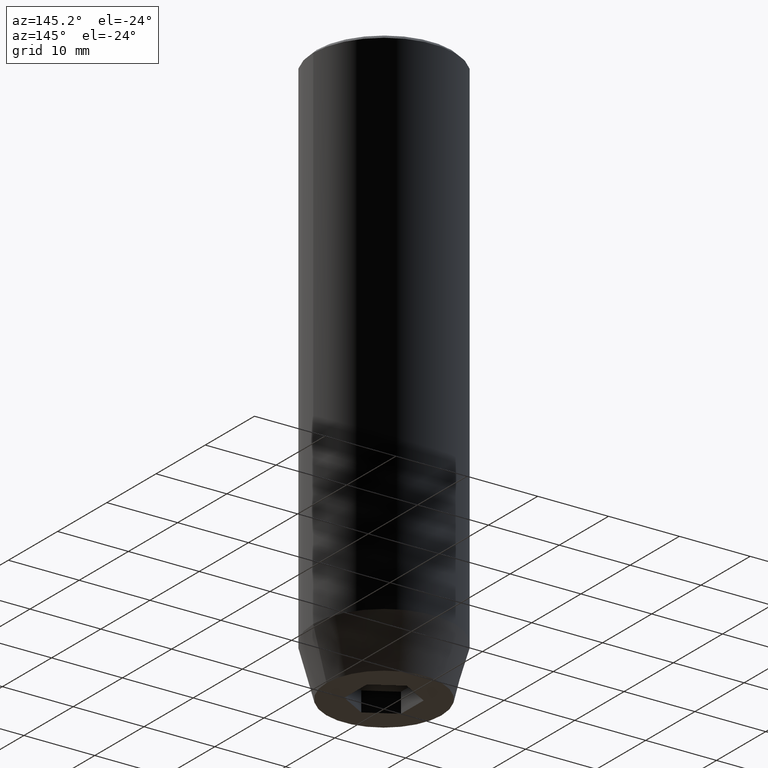
[diagram: clean part render]
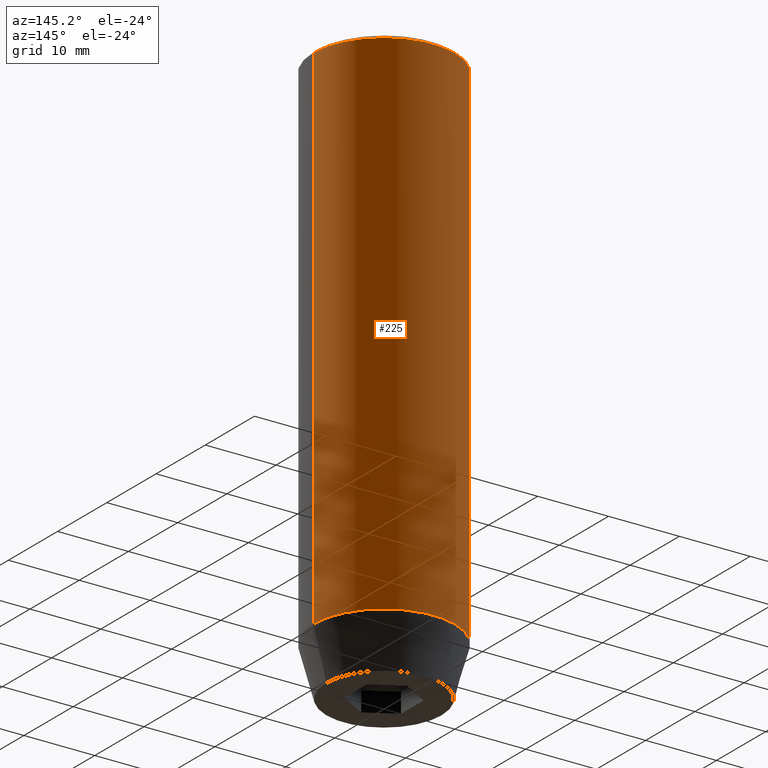
[diagram: same view with one face highlighted and labeled with its STEP entity id]
A machine part, auxiliary view. The second image highlights one B-rep face of the part: STEP entity #225.
In plain terms, the highlighted cylindrical surface (partial cylindrical patch) has radius 10 mm, axis along (-0, -0, 1).
Its self-contained STEP definition (entity closure, byte-faithful):
#10 = CARTESIAN_POINT ( 'NONE',  ( 0.000000000000000000, 0.000000000000000000, -0.4999999999999987232 ) ) ;
#23 = CARTESIAN_POINT ( 'NONE',  ( 10.00000000000000000, 0.000000000000000000, 0.000000000000000000 ) ) ;
#42 = DIRECTION ( 'NONE',  ( -0.000000000000000000, -0.000000000000000000, 1.000000000000000000 ) ) ;
#44 = FACE_OUTER_BOUND ( 'NONE', #432, .T. ) ;
#92 = CIRCLE ( 'NONE', #221, 10.00000000000000000 ) ;
#156 = VERTEX_POINT ( 'NONE', #230 ) ;
#171 = CARTESIAN_POINT ( 'NONE',  ( 10.00000000000000000, 0.000000000000000000, -73.00000000000001421 ) ) ;
#215 = DIRECTION ( 'NONE',  ( -0.000000000000000000, -0.000000000000000000, 1.000000000000000000 ) ) ;
#221 = AXIS2_PLACEMENT_3D ( 'NONE', #316, #356, #224 ) ;
#224 = DIRECTION ( 'NONE',  ( 1.000000000000000000, 0.000000000000000000, 0.000000000000000000 ) ) ;
#225 = ADVANCED_FACE ( 'NONE', ( #44 ), #348, .T. ) ;
#228 = EDGE_CURVE ( 'NONE', #156, #325, #587, .T. ) ;
#230 = CARTESIAN_POINT ( 'NONE',  ( -10.00000000000000000, 1.224646799147353256E-15, -73.00000000000001421 ) ) ;
#299 = CARTESIAN_POINT ( 'NONE',  ( 0.000000000000000000, 0.000000000000000000, 0.000000000000000000 ) ) ;
#316 = CARTESIAN_POINT ( 'NONE',  ( 0.000000000000000000, 0.000000000000000000, -73.00000000000001421 ) ) ;
#325 = VERTEX_POINT ( 'NONE', #487 ) ;
#337 = VECTOR ( 'NONE', #455, 1000.000000000000000 ) ;
#340 = CARTESIAN_POINT ( 'NONE',  ( 10.00000000000000000, 0.000000000000000000, -0.4999999999999987232 ) ) ;
#347 = ORIENTED_EDGE ( 'NONE', *, *, #369, .T. ) ;
#348 = CYLINDRICAL_SURFACE ( 'NONE', #351, 10.00000000000000000 ) ;
#349 = DIRECTION ( 'NONE',  ( 1.000000000000000000, 0.000000000000000000, 0.000000000000000000 ) ) ;
#351 = AXIS2_PLACEMENT_3D ( 'NONE', #299, #42, #448 ) ;
#356 = DIRECTION ( 'NONE',  ( -0.000000000000000000, -0.000000000000000000, 1.000000000000000000 ) ) ;
#369 = EDGE_CURVE ( 'NONE', #398, #156, #92, .T. ) ;
#384 = VERTEX_POINT ( 'NONE', #340 ) ;
#398 = VERTEX_POINT ( 'NONE', #171 ) ;
#399 = ORIENTED_EDGE ( 'NONE', *, *, #467, .F. ) ;
#416 = ORIENTED_EDGE ( 'NONE', *, *, #539, .T. ) ;
#423 = LINE ( 'NONE', #23, #337 ) ;
#432 = EDGE_LOOP ( 'NONE', ( #347, #497, #416, #399 ) ) ;
#434 = CIRCLE ( 'NONE', #505, 10.00000000000000000 ) ;
#442 = CARTESIAN_POINT ( 'NONE',  ( -10.00000000000000000, 1.224646799147353256E-15, 0.000000000000000000 ) ) ;
#448 = DIRECTION ( 'NONE',  ( 1.000000000000000000, 0.000000000000000000, 0.000000000000000000 ) ) ;
#455 = DIRECTION ( 'NONE',  ( -0.000000000000000000, -0.000000000000000000, 1.000000000000000000 ) ) ;
#467 = EDGE_CURVE ( 'NONE', #398, #384, #423, .T. ) ;
#473 = VECTOR ( 'NONE', #215, 1000.000000000000000 ) ;
#487 = CARTESIAN_POINT ( 'NONE',  ( -10.00000000000000000, 1.224646799147353256E-15, -0.4999999999999987232 ) ) ;
#495 = DIRECTION ( 'NONE',  ( 0.000000000000000000, 0.000000000000000000, -1.000000000000000000 ) ) ;
#497 = ORIENTED_EDGE ( 'NONE', *, *, #228, .T. ) ;
#505 = AXIS2_PLACEMENT_3D ( 'NONE', #10, #495, #349 ) ;
#539 = EDGE_CURVE ( 'NONE', #325, #384, #434, .T. ) ;
#587 = LINE ( 'NONE', #442, #473 ) ;